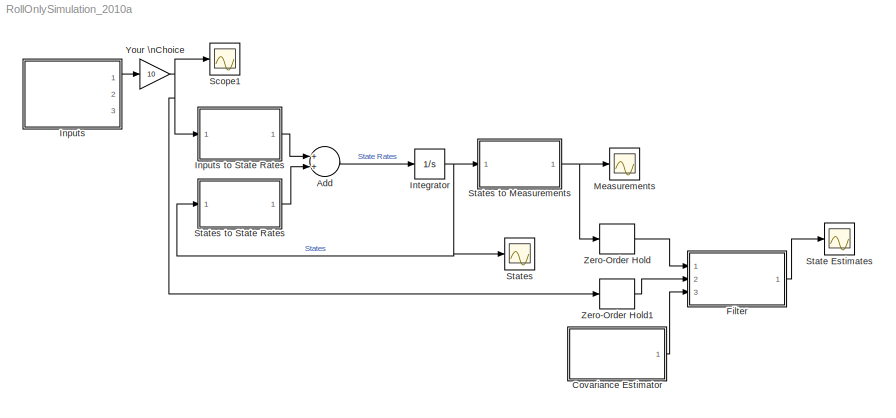
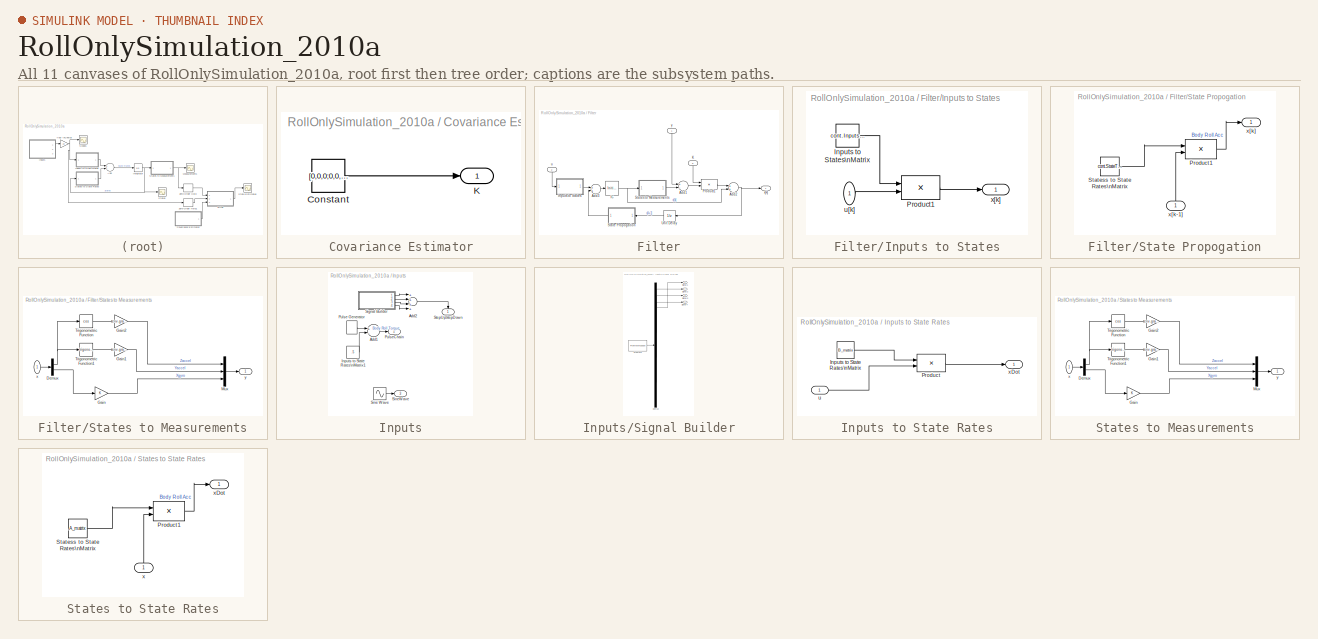
[diagram: thumbnail index - all 11 canvases of the model, root first then tree order]
MODEL RollOnlySimulation_2010a
KIND model
BLOCK [Sum] Add
  InputSameDT = off
  OutDataTypeMode = Inherit via internal rule
  OutDataTypeStr = Inherit: Inherit via internal rule
  Ports = [2, 1]
  SID = 4
  SaturateOnIntegerOverflow = off
BLOCK [SubSystem] Covariance Estimator
  FunctionWithSeparateData = off
  MaskHideContents = off
  MinAlgLoopOccurrences = off
  Opaque = off
  Ports = [0, 1]
  PropExecContextOutsideSubsystem = off
  RTWSystemCode = Auto
  RequestExecContextInheritance = off
  SID = 78
BLOCK [Constant] Covariance Estimator/Constant
  SID = 103
  SampleTime = cont.LoopPeriod
  Value = [0,0,0;0,0,0]
BLOCK [Outport] Covariance Estimator/K
  IconDisplay = Port number
  SID = 101
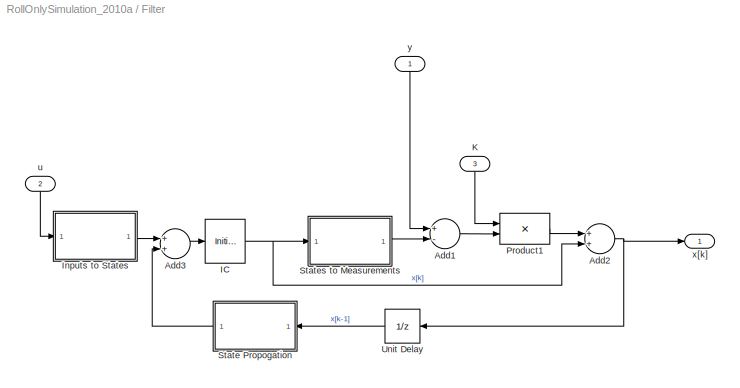
BLOCK [SubSystem] Filter
  FunctionWithSeparateData = off
  MaskHideContents = off
  MinAlgLoopOccurrences = off
  Opaque = off
  Ports = [3, 1]
  PropExecContextOutsideSubsystem = off
  RTWSystemCode = Auto
  RequestExecContextInheritance = off
  SID = 74
BLOCK [Sum] Filter/Add1
  InputSameDT = off
  Inputs = +-
  OutDataTypeMode = Inherit via internal rule
  OutDataTypeStr = Inherit: Inherit via internal rule
  Ports = [2, 1]
  SID = 48
  SampleTime = cont.LoopPeriod
  SaturateOnIntegerOverflow = off
BLOCK [Sum] Filter/Add2
  InputSameDT = off
  OutDataTypeMode = Inherit via internal rule
  OutDataTypeStr = Inherit: Inherit via internal rule
  Ports = [2, 1]
  SID = 73
  SampleTime = cont.LoopPeriod
  SaturateOnIntegerOverflow = off
BLOCK [Sum] Filter/Add3
  InputSameDT = off
  OutDataTypeMode = Inherit via internal rule
  OutDataTypeStr = Inherit: Inherit via internal rule
  Ports = [2, 1]
  SID = 117
  SampleTime = cont.LoopPeriod
  SaturateOnIntegerOverflow = off
BLOCK [InitialCondition] Filter/IC
  SID = 40
  SampleTime = cont.LoopPeriod
  Value = [0 0]
BLOCK [SubSystem] Filter/Inputs to States
  FunctionWithSeparateData = off
  MaskHideContents = off
  MinAlgLoopOccurrences = off
  Opaque = off
  Ports = [1, 1]
  PropExecContextOutsideSubsystem = off
  RTWSystemCode = Auto
  RequestExecContextInheritance = off
  SID = 105
BLOCK [Constant] Filter/Inputs to States/Inputs to States\nMatrix
  SID = 116
  SampleTime = cont.LoopPeriod
  Value = cont.InputsToStatesDiscrete
BLOCK [Product] Filter/Inputs to States/Product1
  InputSameDT = off
  Multiplication = Matrix(*)
  OutDataTypeMode = Inherit via internal rule
  OutDataTypeStr = Inherit: Inherit via internal rule
  Ports = [2, 1]
  SID = 115
  SaturateOnIntegerOverflow = off
BLOCK [Inport] Filter/Inputs to States/u[k]
  IconDisplay = Port number
  SID = 106
BLOCK [Outport] Filter/Inputs to States/x[k]
  IconDisplay = Port number
  SID = 114
BLOCK [Inport] Filter/K
  IconDisplay = Port number
  Port = 3
  SID = 104
BLOCK [Product] Filter/Product1
  InputSameDT = off
  Multiplication = Matrix(*)
  OutDataTypeMode = Inherit via internal rule
  OutDataTypeStr = Inherit: Inherit via internal rule
  Ports = [2, 1]
  SID = 70
  SaturateOnIntegerOverflow = off
BLOCK [SubSystem] Filter/State Propogation
  FunctionWithSeparateData = off
  MaskHideContents = off
  MinAlgLoopOccurrences = off
  Opaque = off
  Ports = [1, 1]
  PropExecContextOutsideSubsystem = off
  RTWSystemCode = Auto
  RequestExecContextInheritance = off
  SID = 42
BLOCK [Product] Filter/State Propogation/Product1
  InputSameDT = off
  Multiplication = Matrix(*)
  OutDataTypeMode = Inherit via internal rule
  OutDataTypeStr = Inherit: Inherit via internal rule
  Ports = [2, 1]
  SID = 44
  SaturateOnIntegerOverflow = off
BLOCK [Constant] Filter/State Propogation/Statess to State Rates\nMatrix
  SID = 45
  SampleTime = cont.LoopPeriod
  Value = cont.StateToStateRatesDiscrete
BLOCK [Inport] Filter/State Propogation/x[k-1]
  IconDisplay = Port number
  SID = 43
BLOCK [Outport] Filter/State Propogation/x[k]
  IconDisplay = Port number
  SID = 46
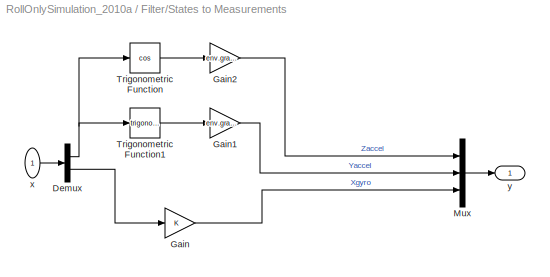
BLOCK [SubSystem] Filter/States to Measurements
  FunctionWithSeparateData = off
  MaskHideContents = off
  MinAlgLoopOccurrences = off
  Opaque = off
  Ports = [1, 1]
  PropExecContextOutsideSubsystem = off
  RTWSystemCode = Auto
  RequestExecContextInheritance = off
  SID = 60
BLOCK [Demux] Filter/States to Measurements/Demux
  DisplayOption = bar
  Outputs = 2
  Ports = [1, 2]
  SID = 62
BLOCK [Gain] Filter/States to Measurements/Gain
  OutDataTypeMode = Inherit via internal rule
  OutDataTypeStr = Inherit: Inherit via internal rule
  ParamDataTypeStr = Inherit: Inherit via internal rule
  ParameterDataTypeMode = Inherit via internal rule
  SID = 63
  SaturateOnIntegerOverflow = off
BLOCK [Gain] Filter/States to Measurements/Gain1
  Gain = env.gravity
  OutDataTypeMode = Inherit via internal rule
  OutDataTypeStr = Inherit: Inherit via internal rule
  ParamDataTypeStr = Inherit: Inherit via internal rule
  ParameterDataTypeMode = Inherit via internal rule
  SID = 64
  SaturateOnIntegerOverflow = off
BLOCK [Gain] Filter/States to Measurements/Gain2
  Gain = env.gravity
  OutDataTypeMode = Inherit via internal rule
  OutDataTypeStr = Inherit: Inherit via internal rule
  ParamDataTypeStr = Inherit: Inherit via internal rule
  ParameterDataTypeMode = Inherit via internal rule
  SID = 65
  SaturateOnIntegerOverflow = off
BLOCK [Mux] Filter/States to Measurements/Mux
  DisplayOption = bar
  Inputs = 3
  Ports = [3, 1]
  SID = 66
BLOCK [Trigonometry] Filter/States to Measurements/Trigonometric Function
  Operator = cos
  Ports = [1, 1]
  SID = 67
BLOCK [Trigonometry] Filter/States to Measurements/Trigonometric Function1
  Ports = [1, 1]
  SID = 68
BLOCK [Inport] Filter/States to Measurements/x
  IconDisplay = Port number
  SID = 61
BLOCK [Outport] Filter/States to Measurements/y
  IconDisplay = Port number
  SID = 69
BLOCK [UnitDelay] Filter/Unit Delay
  SID = 41
  SampleTime = -1
BLOCK [Inport] Filter/u
  IconDisplay = Port number
  Port = 2
  SID = 102
BLOCK [Outport] Filter/x[k]
  IconDisplay = Port number
  SID = 76
BLOCK [Inport] Filter/y
  IconDisplay = Port number
  SID = 75
BLOCK [SubSystem] Inputs
  FunctionWithSeparateData = off
  MaskHideContents = off
  MinAlgLoopOccurrences = off
  Opaque = off
  Ports = [0, 3]
  PropExecContextOutsideSubsystem = off
  RTWSystemCode = Auto
  RequestExecContextInheritance = off
  SID = 22
BLOCK [SubSystem] Inputs to State Rates
  FunctionWithSeparateData = off
  MaskHideContents = off
  MinAlgLoopOccurrences = off
  Opaque = off
  Ports = [1, 1]
  PropExecContextOutsideSubsystem = off
  RTWSystemCode = Auto
  RequestExecContextInheritance = off
  SID = 14
BLOCK [Constant] Inputs to State Rates/Inputs to State Rates\nMatrix
  SID = 2
  Value = B_matrix
BLOCK [Product] Inputs to State Rates/Product
  InputSameDT = off
  Multiplication = Matrix(*)
  OutDataTypeMode = Inherit via internal rule
  OutDataTypeStr = Inherit: Inherit via internal rule
  Ports = [2, 1]
  SID = 3
  SaturateOnIntegerOverflow = off
BLOCK [Inport] Inputs to State Rates/u
  IconDisplay = Port number
  SID = 15
BLOCK [Outport] Inputs to State Rates/xDot
  IconDisplay = Port number
  SID = 16
BLOCK [Sum] Inputs/Add1
  InputSameDT = off
  Inputs = +-
  OutDataTypeMode = Inherit via internal rule
  OutDataTypeStr = Inherit: Inherit via internal rule
  Ports = [2, 1]
  SID = 11
  SaturateOnIntegerOverflow = off
BLOCK [Sum] Inputs/Add2
  InputSameDT = off
  Inputs = ++++
  OutDataTypeMode = Inherit via internal rule
  OutDataTypeStr = Inherit: Inherit via internal rule
  Ports = [4, 1]
  SID = 21
  SaturateOnIntegerOverflow = off
BLOCK [Constant] Inputs/Inputs to State Rates\nMatrix1
  SID = 12
  Value = .5
BLOCK [DiscretePulseGenerator] Inputs/Pulse Generator
  Period = 10
  Ports = [0, 1]
  PulseType = Time based
  PulseWidth = 50
  SID = 10
BLOCK [Outport] Inputs/PulseChain
  IconDisplay = Port number
  Port = 2
  SID = 24
BLOCK [SubSystem] Inputs/Signal Builder
  ClipboardFcn = sigbuilder_block('clipboard');
  CloseFcn = sigbuilder_block('close');
  CopyFcn = sigbuilder_block('copy');
  DeleteFcn = sigbuilder_block('delete');
  FunctionWithSeparateData = off
  LoadFcn = sigbuilder_block('load');
  MaskDescription = Simulink:masks:SigbuilderBlock_MD
  MaskDisplay = plot(0,0,100,100,[10,10,40,40,10],[80,20,20,80,80],[40,10],[50,50], [40,27,10],[65,72,56],[40,25,25,10],[28,28,43,43]);
  MaskHideContents = on
  MaskIconFrame = on
  MaskIconOpaque = off
  MaskIconRotate = port
  MaskIconUnits = autoscale
  MaskInitialization = if ~strcmp(get_param(bdroot(gcbh),'SimulationStatus'),'stopped') tuvar = sigbuilder_block('maskInit'); end
  MaskPortRotate = default
  MaskSelfModifiable = on
  MaskType = Sigbuilder block
  MinAlgLoopOccurrences = off
  ModelCloseFcn = sigbuilder_block('modelClose');
  NameChangeFcn = sigbuilder_block('namechange');
  Opaque = off
  OpenFcn = sigbuilder_block('open',[406.5 147 550.5 399.75 ]);
  Ports = [0, 4]
  PreSaveFcn = sigbuilder_block('preSave');
  PropExecContextOutsideSubsystem = off
  RTWSystemCode = Auto
  RequestExecContextInheritance = off
  SID = 20
  StartFcn = sigbuilder_block('start');
  StopFcn = sigbuilder_block('stop');
  Tag = STV Subsys
BLOCK [Demux] Inputs/Signal Builder/Demux
  Ports = [1, 4]
  SID = 1
  Tag = STV Demux
BLOCK [FromWorkspace] Inputs/Signal Builder/FromWs
  SID = 2
  SampleTime = 0
  SigBuilderData = DataTag0
  Tag = STV FromWs
  VariableName = tuvar
  VnvData = DataTag1
  ZeroCross = on
BLOCK [Outport] Inputs/Signal Builder/Signal 1
  IconDisplay = Port number
  SID = 3
  Tag = STV Outport
BLOCK [Outport] Inputs/Signal Builder/Signal 2
  IconDisplay = Port number
  Port = 2
  SID = 4
  Tag = STV Outport
BLOCK [Outport] Inputs/Signal Builder/Signal 3
  IconDisplay = Port number
  Port = 3
  SID = 5
  Tag = STV Outport
BLOCK [Outport] Inputs/Signal Builder/Signal 4
  IconDisplay = Port number
  Port = 4
  SID = 6
  Tag = STV Outport
BLOCK [Sin] Inputs/Sine Wave
  Ports = [0, 1]
  SID = 13
  SampleTime = 0
BLOCK [Outport] Inputs/SineWave
  IconDisplay = Port number
  Port = 3
  SID = 25
BLOCK [Outport] Inputs/StepUpStepDown
  IconDisplay = Port number
  SID = 23
BLOCK [Integrator] Integrator
  InitialCondition = [0; 0]
  Ports = [1, 1]
  SID = 7
BLOCK [Scope] Measurements
  DataFormat = StructureWithTime
  Floating = off
  NumInputPorts = 1
  Ports = [1]
  SID = 38
  SampleTime = 0
  SaveName = ScopeData2
  TimeRange = 10
  YMax = 10
  YMin = -2
BLOCK [Scope] Scope1
  DataFormat = StructureWithTime
  Floating = off
  NumInputPorts = 1
  Ports = [1]
  SID = 9
  SampleTime = 0
  SaveName = ScopeData1
  TimeRange = 10
  YMax = 10
  YMin = -10
BLOCK [Scope] State Estimates
  DataFormat = StructureWithTime
  Floating = off
  NumInputPorts = 1
  Ports = [1]
  SID = 77
  SampleTime = 0
  SaveName = ScopeData3
  TimeRange = 10
  YMax = 0.6000000000000001
  YMin = -0.8
BLOCK [Scope] States
  DataFormat = StructureWithTime
  Floating = off
  NumInputPorts = 1
  Ports = [1]
  SID = 8
  SampleTime = 0
  TimeRange = 10
  YMax = 0.5
  YMin = -0.5
BLOCK [SubSystem] States to Measurements
  FunctionWithSeparateData = off
  MaskHideContents = off
  MinAlgLoopOccurrences = off
  Opaque = off
  Ports = [1, 1]
  PropExecContextOutsideSubsystem = off
  RTWSystemCode = Auto
  RequestExecContextInheritance = off
  SID = 26
BLOCK [Demux] States to Measurements/Demux
  DisplayOption = bar
  Outputs = 2
  Ports = [1, 2]
  SID = 31
BLOCK [Gain] States to Measurements/Gain
  OutDataTypeMode = Inherit via internal rule
  OutDataTypeStr = Inherit: Inherit via internal rule
  ParamDataTypeStr = Inherit: Inherit via internal rule
  ParameterDataTypeMode = Inherit via internal rule
  SID = 32
  SaturateOnIntegerOverflow = off
BLOCK [Gain] States to Measurements/Gain1
  Gain = env.gravity
  OutDataTypeMode = Inherit via internal rule
  OutDataTypeStr = Inherit: Inherit via internal rule
  ParamDataTypeStr = Inherit: Inherit via internal rule
  ParameterDataTypeMode = Inherit via internal rule
  SID = 35
  SaturateOnIntegerOverflow = off
BLOCK [Gain] States to Measurements/Gain2
  Gain = env.gravity
  OutDataTypeMode = Inherit via internal rule
  OutDataTypeStr = Inherit: Inherit via internal rule
  ParamDataTypeStr = Inherit: Inherit via internal rule
  ParameterDataTypeMode = Inherit via internal rule
  SID = 36
  SaturateOnIntegerOverflow = off
BLOCK [Mux] States to Measurements/Mux
  DisplayOption = bar
  Inputs = 3
  Ports = [3, 1]
  SID = 37
BLOCK [Trigonometry] States to Measurements/Trigonometric Function
  Operator = cos
  Ports = [1, 1]
  SID = 33
BLOCK [Trigonometry] States to Measurements/Trigonometric Function1
  Ports = [1, 1]
  SID = 34
BLOCK [Inport] States to Measurements/x
  IconDisplay = Port number
  SID = 27
BLOCK [Outport] States to Measurements/y
  IconDisplay = Port number
  SID = 30
BLOCK [SubSystem] States to State Rates
  FunctionWithSeparateData = off
  MaskHideContents = off
  MinAlgLoopOccurrences = off
  Opaque = off
  Ports = [1, 1]
  PropExecContextOutsideSubsystem = off
  RTWSystemCode = Auto
  RequestExecContextInheritance = off
  SID = 17
BLOCK [Product] States to State Rates/Product1
  InputSameDT = off
  Multiplication = Matrix(*)
  OutDataTypeMode = Inherit via internal rule
  OutDataTypeStr = Inherit: Inherit via internal rule
  Ports = [2, 1]
  SID = 5
  SaturateOnIntegerOverflow = off
BLOCK [Constant] States to State Rates/Statess to State Rates\nMatrix
  SID = 6
  Value = A_matrix
BLOCK [Inport] States to State Rates/x
  IconDisplay = Port number
  SID = 18
BLOCK [Outport] States to State Rates/xDot
  IconDisplay = Port number
  SID = 19
BLOCK [Gain] Your \nChoice
  Gain = 10
  OutDataTypeMode = Inherit via internal rule
  OutDataTypeStr = Inherit: Inherit via internal rule
  ParamDataTypeStr = Inherit: Inherit via internal rule
  ParameterDataTypeMode = Inherit via internal rule
  SID = 39
  SaturateOnIntegerOverflow = off
BLOCK [ZeroOrderHold] Zero-Order Hold
  SID = 72
  SampleTime = cont.LoopPeriod
BLOCK [ZeroOrderHold] Zero-Order Hold1
  SID = 118
  SampleTime = cont.LoopPeriod
LINE Add:1 -> Integrator:1
LINE Covariance Estimator/Constant:1 -> Covariance Estimator/K:1
LINE Covariance Estimator:1 -> Filter:3
LINE Filter/Add1:1 -> Filter/Product1:2
NET Filter/Add2:1 -> Filter/Unit Delay:1, Filter/x[k]:1
LINE Filter/Add3:1 -> Filter/IC:1
NET Filter/IC:1 -> Filter/Add2:2, Filter/States to Measurements:1
LINE Filter/Inputs to States/Inputs to States\nMatrix:1 -> Filter/Inputs to States/Product1:1
LINE Filter/Inputs to States/Product1:1 -> Filter/Inputs to States/x[k]:1
LINE Filter/Inputs to States/u[k]:1 -> Filter/Inputs to States/Product1:2
LINE Filter/Inputs to States:1 -> Filter/Add3:1
LINE Filter/K:1 -> Filter/Product1:1
LINE Filter/Product1:1 -> Filter/Add2:1
LINE Filter/State Propogation/Product1:1 -> Filter/State Propogation/x[k]:1
LINE Filter/State Propogation/Statess to State Rates\nMatrix:1 -> Filter/State Propogation/Product1:1
LINE Filter/State Propogation/x[k-1]:1 -> Filter/State Propogation/Product1:2
LINE Filter/State Propogation:1 -> Filter/Add3:2
NET Filter/States to Measurements/Demux:1 -> Filter/States to Measurements/Trigonometric Function1:1, Filter/States to Measurements/Trigonometric Function:1
LINE Filter/States to Measurements/Demux:2 -> Filter/States to Measurements/Gain:1
LINE Filter/States to Measurements/Gain1:1 -> Filter/States to Measurements/Mux:2
LINE Filter/States to Measurements/Gain2:1 -> Filter/States to Measurements/Mux:1
LINE Filter/States to Measurements/Gain:1 -> Filter/States to Measurements/Mux:3
LINE Filter/States to Measurements/Mux:1 -> Filter/States to Measurements/y:1
LINE Filter/States to Measurements/Trigonometric Function1:1 -> Filter/States to Measurements/Gain1:1
LINE Filter/States to Measurements/Trigonometric Function:1 -> Filter/States to Measurements/Gain2:1
LINE Filter/States to Measurements/x:1 -> Filter/States to Measurements/Demux:1
LINE Filter/States to Measurements:1 -> Filter/Add1:2
LINE Filter/Unit Delay:1 -> Filter/State Propogation:1
LINE Filter/u:1 -> Filter/Inputs to States:1
LINE Filter/y:1 -> Filter/Add1:1
LINE Filter:1 -> State Estimates:1
LINE Inputs to State Rates/Inputs to State Rates\nMatrix:1 -> Inputs to State Rates/Product:1
LINE Inputs to State Rates/Product:1 -> Inputs to State Rates/xDot:1
LINE Inputs to State Rates/u:1 -> Inputs to State Rates/Product:2
LINE Inputs to State Rates:1 -> Add:1
LINE Inputs/Add1:1 -> Inputs/PulseChain:1
LINE Inputs/Add2:1 -> Inputs/StepUpStepDown:1
LINE Inputs/Inputs to State Rates\nMatrix1:1 -> Inputs/Add1:2
LINE Inputs/Pulse Generator:1 -> Inputs/Add1:1
LINE Inputs/Signal Builder/Demux:1 -> Inputs/Signal Builder/Signal 1:1
LINE Inputs/Signal Builder/Demux:2 -> Inputs/Signal Builder/Signal 2:1
LINE Inputs/Signal Builder/Demux:3 -> Inputs/Signal Builder/Signal 3:1
LINE Inputs/Signal Builder/Demux:4 -> Inputs/Signal Builder/Signal 4:1
LINE Inputs/Signal Builder/FromWs:1 -> Inputs/Signal Builder/Demux:1
LINE Inputs/Signal Builder:1 -> Inputs/Add2:1
LINE Inputs/Signal Builder:2 -> Inputs/Add2:2
LINE Inputs/Signal Builder:3 -> Inputs/Add2:3
LINE Inputs/Signal Builder:4 -> Inputs/Add2:4
LINE Inputs/Sine Wave:1 -> Inputs/SineWave:1
LINE Inputs:1 -> Your \nChoice:1
NET Integrator:1 -> States to Measurements:1, States to State Rates:1, States:1
NET States to Measurements/Demux:1 -> States to Measurements/Trigonometric Function1:1, States to Measurements/Trigonometric Function:1
LINE States to Measurements/Demux:2 -> States to Measurements/Gain:1
LINE States to Measurements/Gain1:1 -> States to Measurements/Mux:2
LINE States to Measurements/Gain2:1 -> States to Measurements/Mux:1
LINE States to Measurements/Gain:1 -> States to Measurements/Mux:3
LINE States to Measurements/Mux:1 -> States to Measurements/y:1
LINE States to Measurements/Trigonometric Function1:1 -> States to Measurements/Gain1:1
LINE States to Measurements/Trigonometric Function:1 -> States to Measurements/Gain2:1
LINE States to Measurements/x:1 -> States to Measurements/Demux:1
NET States to Measurements:1 -> Measurements:1, Zero-Order Hold:1
LINE States to State Rates/Product1:1 -> States to State Rates/xDot:1
LINE States to State Rates/Statess to State Rates\nMatrix:1 -> States to State Rates/Product1:1
LINE States to State Rates/x:1 -> States to State Rates/Product1:2
LINE States to State Rates:1 -> Add:2
NET Your \nChoice:1 -> Inputs to State Rates:1, Scope1:1, Zero-Order Hold1:1
LINE Zero-Order Hold1:1 -> Filter:2
LINE Zero-Order Hold:1 -> Filter:1
note: NET lines group one-source signal fan-out (src -> all destinations, sorted); 1:1 wires keep LINE
